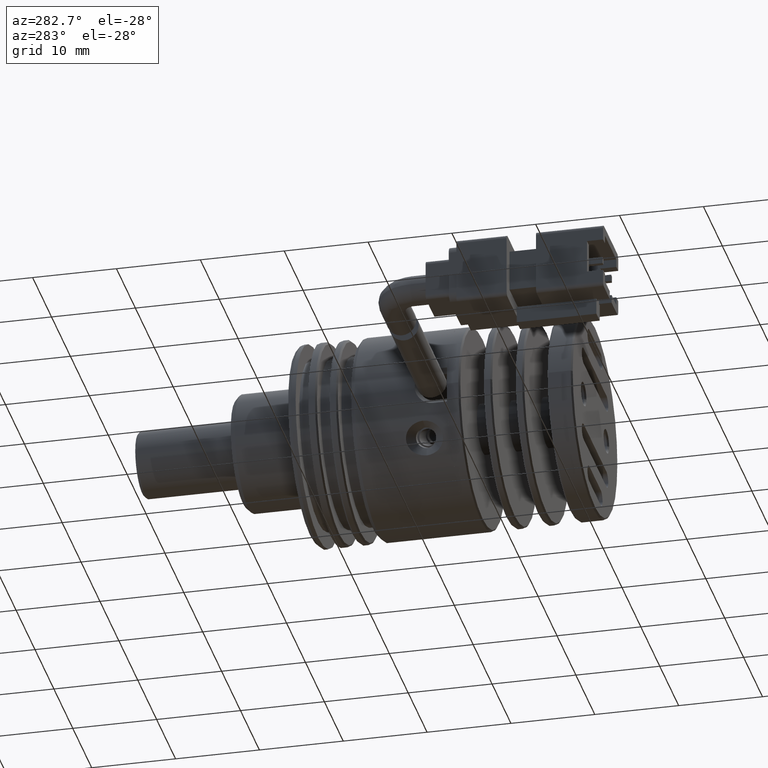
[diagram: clean part render]
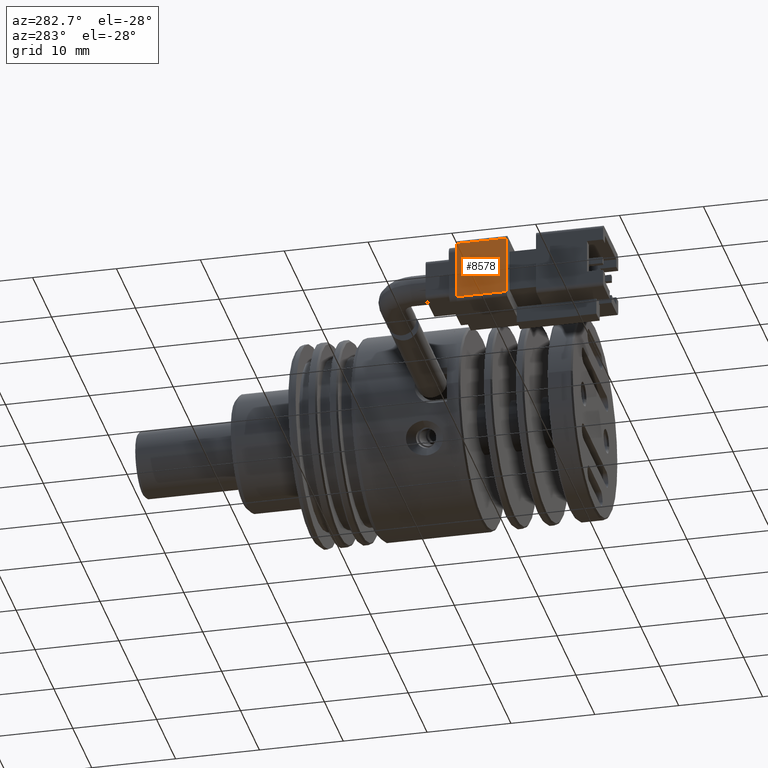
[diagram: same view with one face highlighted and labeled with its STEP entity id]
A machine part, auxiliary view. The second image highlights one B-rep face of the part: STEP entity #8578.
In plain terms, the highlighted planar face has unit normal (1, -0, 0).
Its self-contained STEP definition (entity closure, byte-faithful):
#675 = ORIENTED_EDGE ( 'NONE', *, *, #4682, .F. ) ;
#876 = DIRECTION ( 'NONE',  ( 3.590459175806343900E-017, 1.137978600240785100E-015, -1.000000000000000000 ) ) ;
#1101 = CARTESIAN_POINT ( 'NONE',  ( -36.42506621236418600, -22.96493551001255900, -12.57403592165940200 ) ) ;
#1891 = VECTOR ( 'NONE', #876, 1000.000000000000000 ) ;
#2558 = DIRECTION ( 'NONE',  ( 1.861400131669679900E-016, 1.000000000000000000, 1.137978600240785100E-015 ) ) ;
#2782 = CARTESIAN_POINT ( 'NONE',  ( -36.42506621236419300, -28.96493551001256600, -5.574035921659411300 ) ) ;
#3053 = DIRECTION ( 'NONE',  ( 1.000000000000000000, -1.861400131669681900E-016, 1.598134114706923500E-016 ) ) ;
#3407 = ORIENTED_EDGE ( 'NONE', *, *, #8831, .F. ) ;
#4682 = EDGE_CURVE ( 'NONE', #18504, #9267, #9071, .T. ) ;
#5551 = CARTESIAN_POINT ( 'NONE',  ( -36.42506621236419300, -28.96493551001255900, -12.57403592165940900 ) ) ;
#5678 = VECTOR ( 'NONE', #8774, 1000.000000000000000 ) ;
#5948 = PLANE ( 'NONE',  #8994 ) ;
#8578 = ADVANCED_FACE ( 'NONE', ( #16174 ), #5948, .F. ) ;
#8650 = ORIENTED_EDGE ( 'NONE', *, *, #19081, .F. ) ;
#8774 = DIRECTION ( 'NONE',  ( -1.598134114706925700E-016, -1.137978600240785100E-015, 1.000000000000000000 ) ) ;
#8831 = EDGE_CURVE ( 'NONE', #12430, #11516, #9433, .T. ) ;
#8994 = AXIS2_PLACEMENT_3D ( 'NONE', #11896, #3053, #13391 ) ;
#9071 = LINE ( 'NONE', #9935, #10460 ) ;
#9267 = VERTEX_POINT ( 'NONE', #1101 ) ;
#9433 = LINE ( 'NONE', #17570, #13383 ) ;
#9935 = CARTESIAN_POINT ( 'NONE',  ( -36.42506621236418600, -22.96493551001255900, -12.57403592165940200 ) ) ;
#9974 = ORIENTED_EDGE ( 'NONE', *, *, #13088, .F. ) ;
#10460 = VECTOR ( 'NONE', #2558, 1000.000000000000000 ) ;
#11207 = CARTESIAN_POINT ( 'NONE',  ( -36.42506621236419300, -28.96493551001255900, -12.57403592165940700 ) ) ;
#11516 = VERTEX_POINT ( 'NONE', #2782 ) ;
#11896 = CARTESIAN_POINT ( 'NONE',  ( -36.42506621236418600, -22.96493551001255900, -12.57403592165940200 ) ) ;
#11907 = CARTESIAN_POINT ( 'NONE',  ( -36.42506621236418600, -22.96493551001256600, -5.574035921659404200 ) ) ;
#12430 = VERTEX_POINT ( 'NONE', #11907 ) ;
#13088 = EDGE_CURVE ( 'NONE', #11516, #18504, #17656, .T. ) ;
#13210 = DIRECTION ( 'NONE',  ( -1.861400131669679900E-016, -1.000000000000000000, -1.137978600240785100E-015 ) ) ;
#13383 = VECTOR ( 'NONE', #13210, 1000.000000000000000 ) ;
#13391 = DIRECTION ( 'NONE',  ( 1.598134114706925700E-016, 1.137978600240785100E-015, -1.000000000000000000 ) ) ;
#13540 = LINE ( 'NONE', #17666, #5678 ) ;
#14356 = EDGE_LOOP ( 'NONE', ( #3407, #8650, #675, #9974 ) ) ;
#16174 = FACE_OUTER_BOUND ( 'NONE', #14356, .T. ) ;
#17570 = CARTESIAN_POINT ( 'NONE',  ( -36.42506621236418600, -22.96493551001256600, -5.574035921659404200 ) ) ;
#17656 = LINE ( 'NONE', #11207, #1891 ) ;
#17666 = CARTESIAN_POINT ( 'NONE',  ( -36.42506621236418600, -22.96493551001255900, -12.57403592165940200 ) ) ;
#18504 = VERTEX_POINT ( 'NONE', #5551 ) ;
#19081 = EDGE_CURVE ( 'NONE', #9267, #12430, #13540, .T. ) ;